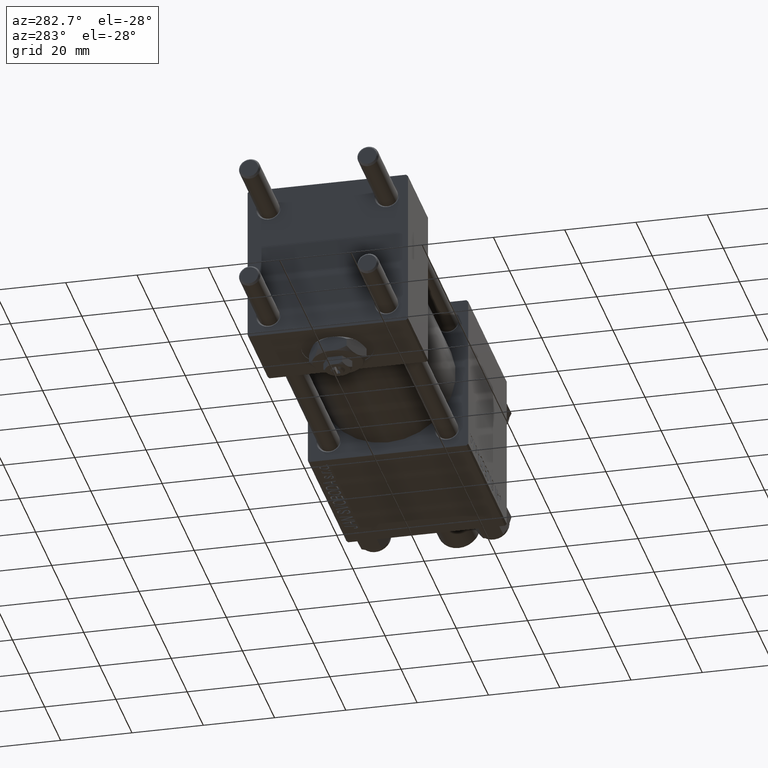
[diagram: clean part render]
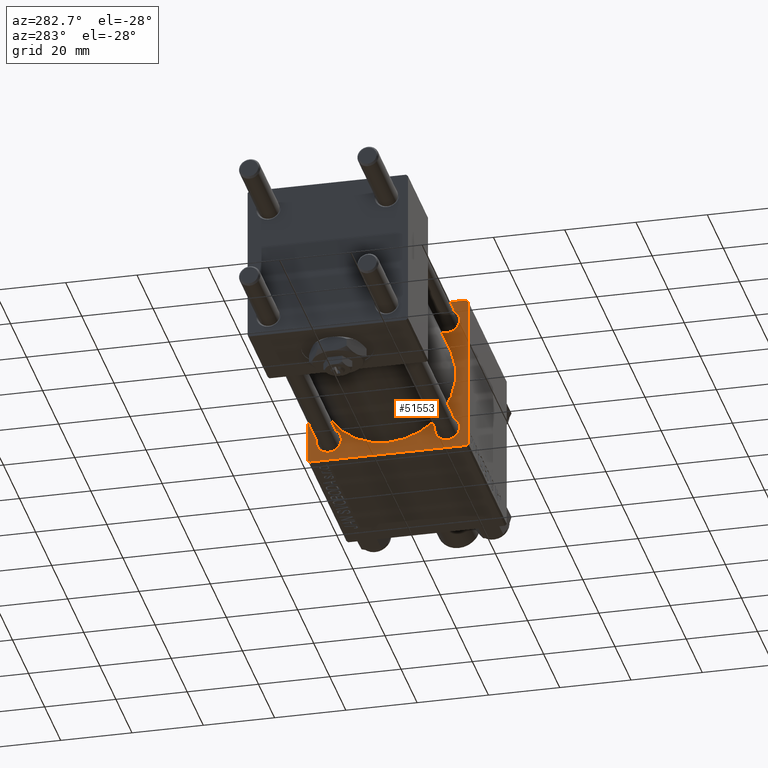
[diagram: same view with one face highlighted and labeled with its STEP entity id]
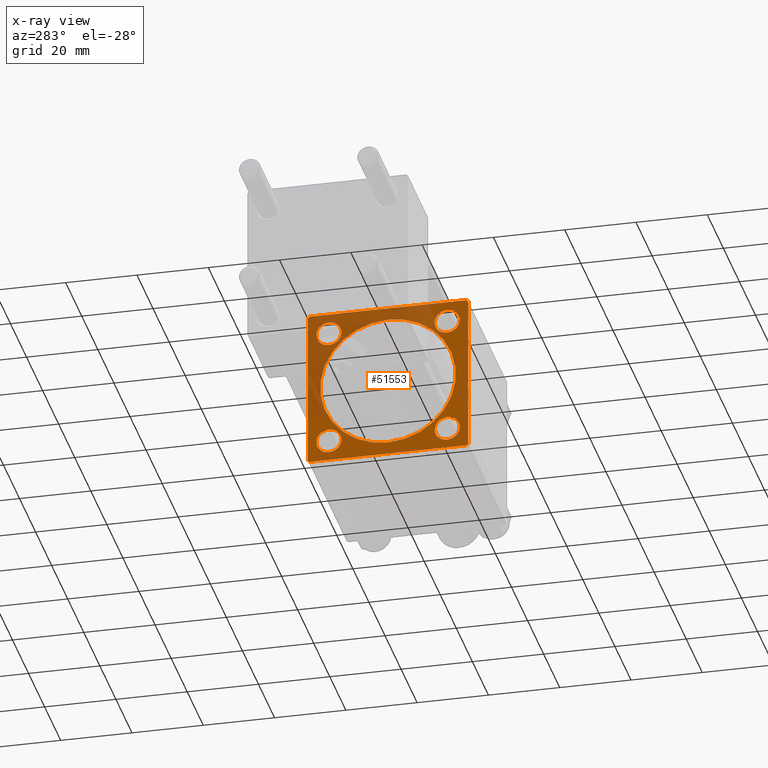
[diagram: x-ray of the same camera — body ghosted, the highlighted face saturated]
A machine part, auxiliary view. The second image highlights one B-rep face of the part: STEP entity #51553.
The next image is the same camera in x-ray: the body ghosted, the highlighted face saturated — about 39% of this face is hidden behind the body in this view.
In plain terms, the highlighted planar face has unit normal (-1, 0, 0).
Its self-contained STEP definition (entity closure, byte-faithful):
#399 = VERTEX_POINT ( 'NONE', #34391 ) ;
#1063 = DIRECTION ( 'NONE',  ( 0.000000000000000000, 0.000000000000000000, 1.000000000000000000 ) ) ;
#1783 = AXIS2_PLACEMENT_3D ( 'NONE', #15218, #19431, #47404 ) ;
#1796 = CIRCLE ( 'NONE', #11958, 3.500000000000031086 ) ;
#2150 = CARTESIAN_POINT ( 'NONE',  ( 75.00000000000001421, 16.59999999999999787, -20.10000000000003340 ) ) ;
#2630 = AXIS2_PLACEMENT_3D ( 'NONE', #42858, #6669, #22811 ) ;
#2964 = VECTOR ( 'NONE', #36543, 1000.000000000000000 ) ;
#3244 = EDGE_LOOP ( 'NONE', ( #18035, #30500 ) ) ;
#3574 = PLANE ( 'NONE',  #1783 ) ;
#3860 = CARTESIAN_POINT ( 'NONE',  ( 75.00000000000001421, -22.49999999999999645, -21.99999999999997868 ) ) ;
#3865 = EDGE_CURVE ( 'NONE', #36053, #13768, #44591, .T. ) ;
#4029 = ORIENTED_EDGE ( 'NONE', *, *, #38780, .F. ) ;
#4175 = AXIS2_PLACEMENT_3D ( 'NONE', #11141, #23298, #7684 ) ;
#4311 = EDGE_CURVE ( 'NONE', #42882, #24505, #51390, .T. ) ;
#4528 = CARTESIAN_POINT ( 'NONE',  ( 75.00000000000001421, 21.99999999999996092, 22.50000000000000355 ) ) ;
#4805 = CARTESIAN_POINT ( 'NONE',  ( 75.00000000000001421, 16.59999999999999787, 20.10000000000001918 ) ) ;
#4945 = DIRECTION ( 'NONE',  ( 0.000000000000000000, 0.000000000000000000, 1.000000000000000000 ) ) ;
#5074 = ORIENTED_EDGE ( 'NONE', *, *, #8751, .T. ) ;
#5105 = DIRECTION ( 'NONE',  ( 0.000000000000000000, -0.7071067811865425767, 0.7071067811865525687 ) ) ;
#5335 = VERTEX_POINT ( 'NONE', #42401 ) ;
#6043 = CARTESIAN_POINT ( 'NONE',  ( 75.00000000000001421, -22.49999999999999645, 22.49999999999999289 ) ) ;
#6498 = AXIS2_PLACEMENT_3D ( 'NONE', #9591, #17011, #25720 ) ;
#6669 = DIRECTION ( 'NONE',  ( 1.000000000000000000, 0.000000000000000000, 0.000000000000000000 ) ) ;
#6684 = CIRCLE ( 'NONE', #4175, 3.500000000000031086 ) ;
#7074 = DIRECTION ( 'NONE',  ( 1.000000000000000000, -0.000000000000000000, 0.000000000000000000 ) ) ;
#7237 = ORIENTED_EDGE ( 'NONE', *, *, #11082, .T. ) ;
#7301 = VECTOR ( 'NONE', #5105, 999.9999999999998863 ) ;
#7600 = CIRCLE ( 'NONE', #34573, 3.500000000000016875 ) ;
#7684 = DIRECTION ( 'NONE',  ( 0.000000000000000000, 0.000000000000000000, 1.000000000000000000 ) ) ;
#8022 = VECTOR ( 'NONE', #49950, 1000.000000000000000 ) ;
#8124 = ORIENTED_EDGE ( 'NONE', *, *, #11147, .T. ) ;
#8261 = CARTESIAN_POINT ( 'NONE',  ( 75.00000000000001421, 16.59999999999999787, -16.60000000000000497 ) ) ;
#8721 = DIRECTION ( 'NONE',  ( 1.000000000000000000, -0.000000000000000000, 0.000000000000000000 ) ) ;
#8751 = EDGE_CURVE ( 'NONE', #10821, #5335, #46939, .T. ) ;
#9089 = CIRCLE ( 'NONE', #42006, 3.500000000000016875 ) ;
#9372 = ORIENTED_EDGE ( 'NONE', *, *, #26220, .T. ) ;
#9591 = CARTESIAN_POINT ( 'NONE',  ( 75.00000000000001421, -16.59999999999999076, 16.60000000000000853 ) ) ;
#9596 = VERTEX_POINT ( 'NONE', #36311 ) ;
#10137 = AXIS2_PLACEMENT_3D ( 'NONE', #29018, #12379, #37194 ) ;
#10674 = CARTESIAN_POINT ( 'NONE',  ( 75.00000000000001421, -16.59999999999999076, 20.10000000000002274 ) ) ;
#10807 = EDGE_LOOP ( 'NONE', ( #5074, #11670 ) ) ;
#10821 = VERTEX_POINT ( 'NONE', #10674 ) ;
#10932 = CARTESIAN_POINT ( 'NONE',  ( 75.00000000000001421, 16.59999999999999787, 16.60000000000000497 ) ) ;
#11061 = EDGE_CURVE ( 'NONE', #13768, #12643, #49166, .T. ) ;
#11082 = EDGE_CURVE ( 'NONE', #42384, #11128, #40906, .T. ) ;
#11128 = VERTEX_POINT ( 'NONE', #2150 ) ;
#11141 = CARTESIAN_POINT ( 'NONE',  ( 75.00000000000001421, -16.59999999999999076, -16.60000000000000853 ) ) ;
#11147 = EDGE_CURVE ( 'NONE', #9596, #46318, #30434, .T. ) ;
#11291 = ORIENTED_EDGE ( 'NONE', *, *, #26925, .T. ) ;
#11670 = ORIENTED_EDGE ( 'NONE', *, *, #43889, .T. ) ;
#11958 = AXIS2_PLACEMENT_3D ( 'NONE', #40691, #8721, #1063 ) ;
#12329 = DIRECTION ( 'NONE',  ( 0.000000000000000000, -1.000000000000000000, -7.709882115452476934E-17 ) ) ;
#12379 = DIRECTION ( 'NONE',  ( 1.000000000000000000, 0.000000000000000000, 0.000000000000000000 ) ) ;
#12437 = VERTEX_POINT ( 'NONE', #3860 ) ;
#12643 = VERTEX_POINT ( 'NONE', #22334 ) ;
#13768 = VERTEX_POINT ( 'NONE', #30777 ) ;
#14546 = EDGE_LOOP ( 'NONE', ( #31298, #11291 ) ) ;
#14669 = EDGE_CURVE ( 'NONE', #24505, #12437, #41034, .T. ) ;
#14770 = DIRECTION ( 'NONE',  ( 0.000000000000000000, -1.000000000000000000, -2.312964634635742957E-16 ) ) ;
#15218 = CARTESIAN_POINT ( 'NONE',  ( 75.00000000000001421, 0.000000000000000000, 0.000000000000000000 ) ) ;
#15484 = FACE_BOUND ( 'NONE', #14546, .T. ) ;
#15494 = CARTESIAN_POINT ( 'NONE',  ( 75.00000000000001421, 0.000000000000000000, 19.00000000000000000 ) ) ;
#16039 = CARTESIAN_POINT ( 'NONE',  ( 75.00000000000001421, 22.50000000000000355, -22.49999999999999645 ) ) ;
#17011 = DIRECTION ( 'NONE',  ( 1.000000000000000000, -0.000000000000000000, 0.000000000000000000 ) ) ;
#17201 = ORIENTED_EDGE ( 'NONE', *, *, #3865, .T. ) ;
#17238 = CARTESIAN_POINT ( 'NONE',  ( 75.00000000000001421, -16.59999999999999076, -20.10000000000003695 ) ) ;
#17432 = LINE ( 'NONE', #29586, #27146 ) ;
#18035 = ORIENTED_EDGE ( 'NONE', *, *, #25820, .T. ) ;
#18732 = LINE ( 'NONE', #34845, #36932 ) ;
#18798 = CARTESIAN_POINT ( 'NONE',  ( 75.00000000000001421, -22.24999999999969447, 22.25000000000030909 ) ) ;
#19431 = DIRECTION ( 'NONE',  ( -1.000000000000000000, 0.000000000000000000, -0.000000000000000000 ) ) ;
#20322 = AXIS2_PLACEMENT_3D ( 'NONE', #20560, #41136, #4945 ) ;
#20560 = CARTESIAN_POINT ( 'NONE',  ( 75.00000000000001421, -16.59999999999999076, -16.60000000000000853 ) ) ;
#20707 = VECTOR ( 'NONE', #12329, 1000.000000000000000 ) ;
#21133 = LINE ( 'NONE', #6043, #34756 ) ;
#22001 = ORIENTED_EDGE ( 'NONE', *, *, #29319, .T. ) ;
#22334 = CARTESIAN_POINT ( 'NONE',  ( 75.00000000000001421, 22.50000000000000355, -21.99999999999999645 ) ) ;
#22811 = DIRECTION ( 'NONE',  ( 0.000000000000000000, 0.000000000000000000, -1.000000000000000000 ) ) ;
#23148 = FACE_BOUND ( 'NONE', #10807, .T. ) ;
#23298 = DIRECTION ( 'NONE',  ( 1.000000000000000000, -0.000000000000000000, 0.000000000000000000 ) ) ;
#23579 = AXIS2_PLACEMENT_3D ( 'NONE', #10932, #27836, #23879 ) ;
#23590 = ORIENTED_EDGE ( 'NONE', *, *, #30655, .T. ) ;
#23684 = VERTEX_POINT ( 'NONE', #38371 ) ;
#23879 = DIRECTION ( 'NONE',  ( 0.000000000000000000, 0.000000000000000000, 1.000000000000000000 ) ) ;
#24023 = DIRECTION ( 'NONE',  ( 0.000000000000000000, 0.7071067811865573427, -0.7071067811865378028 ) ) ;
#24485 = CIRCLE ( 'NONE', #10137, 19.00000000000000000 ) ;
#24505 = VERTEX_POINT ( 'NONE', #29197 ) ;
#24711 = EDGE_CURVE ( 'NONE', #44530, #399, #38720, .T. ) ;
#25720 = DIRECTION ( 'NONE',  ( 0.000000000000000000, 0.000000000000000000, 1.000000000000000000 ) ) ;
#25820 = EDGE_CURVE ( 'NONE', #23684, #44596, #6684, .T. ) ;
#26147 = DIRECTION ( 'NONE',  ( -0.000000000000000000, -0.7071067811865573427, -0.7071067811865378028 ) ) ;
#26220 = EDGE_CURVE ( 'NONE', #48542, #50213, #24485, .T. ) ;
#26807 = EDGE_LOOP ( 'NONE', ( #9372, #47394 ) ) ;
#26925 = EDGE_CURVE ( 'NONE', #399, #44530, #7600, .T. ) ;
#27102 = FACE_OUTER_BOUND ( 'NONE', #30297, .T. ) ;
#27146 = VECTOR ( 'NONE', #26147, 1000.000000000000000 ) ;
#27836 = DIRECTION ( 'NONE',  ( 1.000000000000000000, -0.000000000000000000, 0.000000000000000000 ) ) ;
#28525 = CARTESIAN_POINT ( 'NONE',  ( 75.00000000000001421, 2.326828918379970970E-15, -19.00000000000000000 ) ) ;
#28680 = EDGE_CURVE ( 'NONE', #44596, #23684, #49814, .T. ) ;
#28886 = DIRECTION ( 'NONE',  ( 0.000000000000000000, 0.000000000000000000, 1.000000000000000000 ) ) ;
#29018 = CARTESIAN_POINT ( 'NONE',  ( 75.00000000000001421, 0.000000000000000000, 0.000000000000000000 ) ) ;
#29197 = CARTESIAN_POINT ( 'NONE',  ( 75.00000000000001421, -21.99999999999998224, -22.50000000000000000 ) ) ;
#29319 = EDGE_CURVE ( 'NONE', #11128, #42384, #1796, .T. ) ;
#29586 = CARTESIAN_POINT ( 'NONE',  ( 75.00000000000001421, 22.24999999999969802, -22.25000000000031619 ) ) ;
#30297 = EDGE_LOOP ( 'NONE', ( #41342, #44782, #44666, #8124, #4029, #17201, #39242, #23590 ) ) ;
#30434 = LINE ( 'NONE', #18798, #8022 ) ;
#30500 = ORIENTED_EDGE ( 'NONE', *, *, #28680, .T. ) ;
#30655 = EDGE_CURVE ( 'NONE', #12643, #42882, #17432, .T. ) ;
#30671 = EDGE_CURVE ( 'NONE', #9596, #12437, #21133, .T. ) ;
#30777 = CARTESIAN_POINT ( 'NONE',  ( 75.00000000000001421, 22.50000000000000355, 21.99999999999997513 ) ) ;
#31298 = ORIENTED_EDGE ( 'NONE', *, *, #24711, .T. ) ;
#31326 = FACE_BOUND ( 'NONE', #26807, .T. ) ;
#32110 = CARTESIAN_POINT ( 'NONE',  ( 75.00000000000001421, 22.00000000000000355, -22.49999999999999645 ) ) ;
#32568 = DIRECTION ( 'NONE',  ( 1.000000000000000000, -0.000000000000000000, 0.000000000000000000 ) ) ;
#33322 = CARTESIAN_POINT ( 'NONE',  ( 75.00000000000001421, 16.59999999999999787, -13.09999999999997300 ) ) ;
#33394 = DIRECTION ( 'NONE',  ( 0.000000000000000000, 0.000000000000000000, 1.000000000000000000 ) ) ;
#34391 = CARTESIAN_POINT ( 'NONE',  ( 75.00000000000001421, 16.59999999999999787, 13.09999999999998721 ) ) ;
#34573 = AXIS2_PLACEMENT_3D ( 'NONE', #45259, #37887, #33394 ) ;
#34756 = VECTOR ( 'NONE', #49348, 1000.000000000000000 ) ;
#34835 = CARTESIAN_POINT ( 'NONE',  ( 75.00000000000001421, -16.59999999999999076, 16.60000000000000853 ) ) ;
#34845 = CARTESIAN_POINT ( 'NONE',  ( 75.00000000000001421, 22.50000000000000355, 22.50000000000000355 ) ) ;
#36053 = VERTEX_POINT ( 'NONE', #4528 ) ;
#36311 = CARTESIAN_POINT ( 'NONE',  ( 75.00000000000001421, -22.49999999999999645, 22.00000000000000711 ) ) ;
#36543 = DIRECTION ( 'NONE',  ( 0.000000000000000000, 0.000000000000000000, -1.000000000000000000 ) ) ;
#36932 = VECTOR ( 'NONE', #14770, 1000.000000000000000 ) ;
#37194 = DIRECTION ( 'NONE',  ( 0.000000000000000000, 0.000000000000000000, -1.000000000000000000 ) ) ;
#37887 = DIRECTION ( 'NONE',  ( 1.000000000000000000, -0.000000000000000000, 0.000000000000000000 ) ) ;
#38371 = CARTESIAN_POINT ( 'NONE',  ( 75.00000000000001421, -16.59999999999999076, -13.09999999999997655 ) ) ;
#38426 = VECTOR ( 'NONE', #24023, 1000.000000000000000 ) ;
#38517 = CARTESIAN_POINT ( 'NONE',  ( 75.00000000000001421, -21.99999999999998224, 22.49999999999999289 ) ) ;
#38720 = CIRCLE ( 'NONE', #23579, 3.500000000000016875 ) ;
#38780 = EDGE_CURVE ( 'NONE', #36053, #46318, #18732, .T. ) ;
#39242 = ORIENTED_EDGE ( 'NONE', *, *, #11061, .T. ) ;
#39304 = DIRECTION ( 'NONE',  ( 0.000000000000000000, 0.000000000000000000, 1.000000000000000000 ) ) ;
#40691 = CARTESIAN_POINT ( 'NONE',  ( 75.00000000000001421, 16.59999999999999787, -16.60000000000000497 ) ) ;
#40750 = CARTESIAN_POINT ( 'NONE',  ( 75.00000000000001421, 22.50000000000000355, 22.50000000000000355 ) ) ;
#40906 = CIRCLE ( 'NONE', #43464, 3.500000000000031086 ) ;
#41034 = LINE ( 'NONE', #41298, #7301 ) ;
#41136 = DIRECTION ( 'NONE',  ( 1.000000000000000000, -0.000000000000000000, 0.000000000000000000 ) ) ;
#41298 = CARTESIAN_POINT ( 'NONE',  ( 75.00000000000001421, -22.25000000000015277, -22.24999999999984013 ) ) ;
#41342 = ORIENTED_EDGE ( 'NONE', *, *, #4311, .T. ) ;
#42006 = AXIS2_PLACEMENT_3D ( 'NONE', #34835, #7074, #39304 ) ;
#42384 = VERTEX_POINT ( 'NONE', #33322 ) ;
#42401 = CARTESIAN_POINT ( 'NONE',  ( 75.00000000000001421, -16.59999999999999076, 13.09999999999999076 ) ) ;
#42858 = CARTESIAN_POINT ( 'NONE',  ( 75.00000000000001421, 0.000000000000000000, 0.000000000000000000 ) ) ;
#42882 = VERTEX_POINT ( 'NONE', #32110 ) ;
#43464 = AXIS2_PLACEMENT_3D ( 'NONE', #8261, #32568, #28886 ) ;
#43889 = EDGE_CURVE ( 'NONE', #5335, #10821, #9089, .T. ) ;
#43974 = FACE_BOUND ( 'NONE', #3244, .T. ) ;
#44530 = VERTEX_POINT ( 'NONE', #4805 ) ;
#44591 = LINE ( 'NONE', #51709, #38426 ) ;
#44596 = VERTEX_POINT ( 'NONE', #17238 ) ;
#44666 = ORIENTED_EDGE ( 'NONE', *, *, #30671, .F. ) ;
#44782 = ORIENTED_EDGE ( 'NONE', *, *, #14669, .T. ) ;
#45259 = CARTESIAN_POINT ( 'NONE',  ( 75.00000000000001421, 16.59999999999999787, 16.60000000000000497 ) ) ;
#46318 = VERTEX_POINT ( 'NONE', #38517 ) ;
#46939 = CIRCLE ( 'NONE', #6498, 3.500000000000016875 ) ;
#47140 = FACE_BOUND ( 'NONE', #48973, .T. ) ;
#47394 = ORIENTED_EDGE ( 'NONE', *, *, #51116, .T. ) ;
#47404 = DIRECTION ( 'NONE',  ( -0.000000000000000000, 0.000000000000000000, 1.000000000000000000 ) ) ;
#48542 = VERTEX_POINT ( 'NONE', #15494 ) ;
#48973 = EDGE_LOOP ( 'NONE', ( #7237, #22001 ) ) ;
#49166 = LINE ( 'NONE', #40750, #2964 ) ;
#49348 = DIRECTION ( 'NONE',  ( 0.000000000000000000, 0.000000000000000000, -1.000000000000000000 ) ) ;
#49814 = CIRCLE ( 'NONE', #20322, 3.500000000000031086 ) ;
#49950 = DIRECTION ( 'NONE',  ( -0.000000000000000000, 0.7071067811865573427, 0.7071067811865378028 ) ) ;
#50213 = VERTEX_POINT ( 'NONE', #28525 ) ;
#51116 = EDGE_CURVE ( 'NONE', #50213, #48542, #51515, .T. ) ;
#51390 = LINE ( 'NONE', #16039, #20707 ) ;
#51515 = CIRCLE ( 'NONE', #2630, 19.00000000000000000 ) ;
#51553 = ADVANCED_FACE ( 'NONE', ( #23148, #15484, #47140, #43974, #31326, #27102 ), #3574, .T. ) ;
#51709 = CARTESIAN_POINT ( 'NONE',  ( 75.00000000000001421, 22.24999999999968026, 22.25000000000029488 ) ) ;